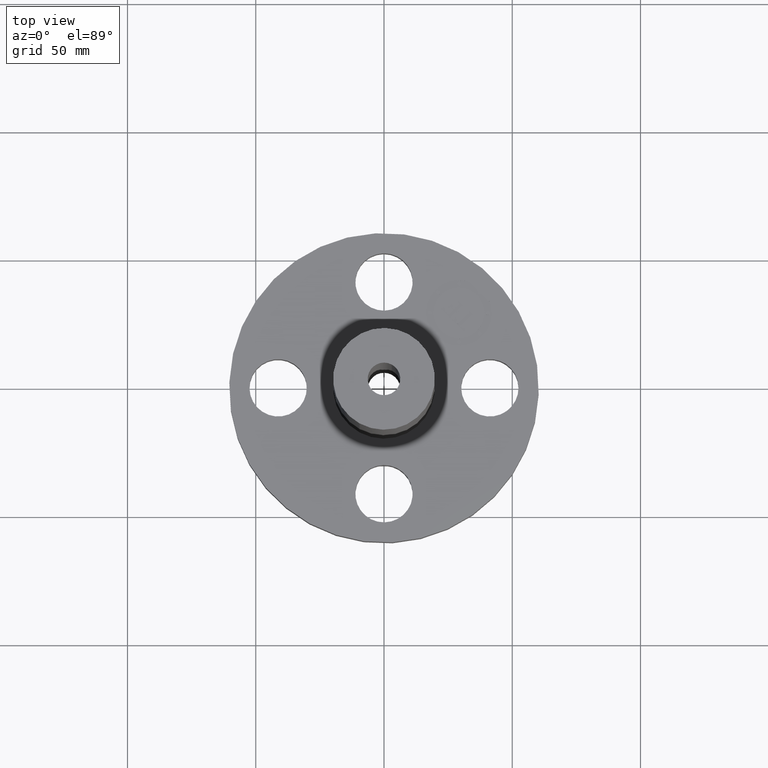
[diagram: clean part render]
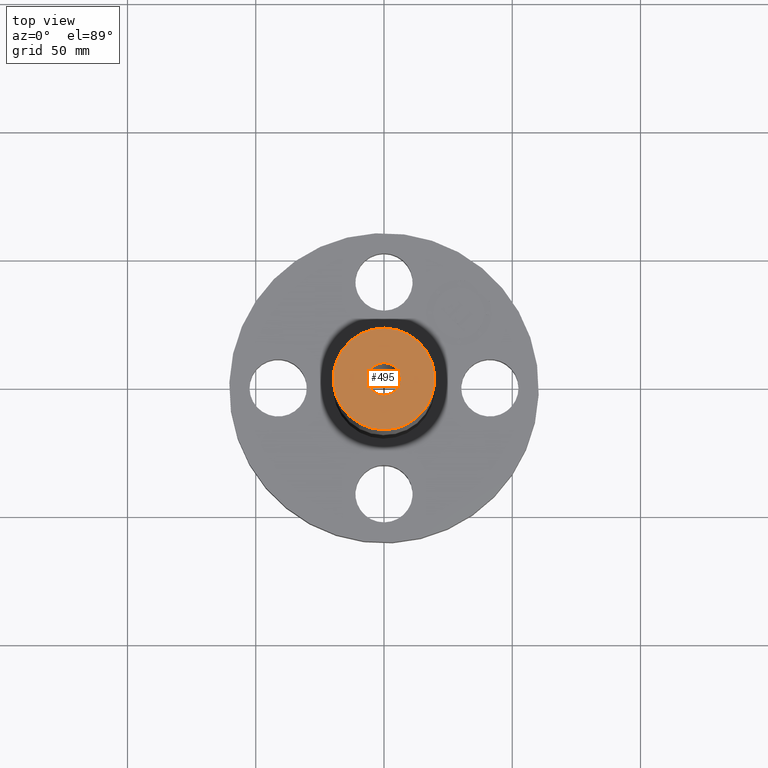
[diagram: same view with one face highlighted and labeled with its STEP entity id]
A machine part, top view. The second image highlights one B-rep face of the part: STEP entity #495.
In plain terms, the highlighted planar face has unit normal (0, 0, -1).
Its self-contained STEP definition (entity closure, byte-faithful):
#434=AXIS2_PLACEMENT_3D('Circle Axis2P3D',#432,#433,$) ;
#458=AXIS2_PLACEMENT_3D('Circle Axis2P3D',#456,#457,$) ;
#471=AXIS2_PLACEMENT_3D('Plane Axis2P3D',#468,#469,#470) ;
#479=AXIS2_PLACEMENT_3D('Circle Axis2P3D',#477,#478,$) ;
#488=AXIS2_PLACEMENT_3D('Circle Axis2P3D',#486,#487,$) ;
#429=CARTESIAN_POINT('Vertex',(0.373951920113,0.684514398277,8.75000000003)) ;
#432=CARTESIAN_POINT('Axis2P3D Location',(0.,0.,8.75000000004)) ;
#436=CARTESIAN_POINT('Vertex',(-0.373951920113,-0.684514398277,8.75000000003)) ;
#456=CARTESIAN_POINT('Axis2P3D Location',(0.,0.,8.75000000004)) ;
#468=CARTESIAN_POINT('Axis2P3D Location',(0.,0.780000000003,8.75000000003)) ;
#477=CARTESIAN_POINT('Axis2P3D Location',(0.,0.,8.75000000003)) ;
#481=CARTESIAN_POINT('Vertex',(-0.119856384652,-0.219395640473,8.75000000004)) ;
#483=CARTESIAN_POINT('Vertex',(0.119856384652,0.219395640473,8.75000000004)) ;
#486=CARTESIAN_POINT('Axis2P3D Location',(0.,0.,8.75000000003)) ;
#433=DIRECTION('Axis2P3D Direction',(0.,0.,-0.0393700787402)) ;
#457=DIRECTION('Axis2P3D Direction',(0.,0.,-0.0393700787402)) ;
#469=DIRECTION('Axis2P3D Direction',(0.,0.,-0.0393700787402)) ;
#470=DIRECTION('Axis2P3D XDirection',(0.0393700787402,0.,0.)) ;
#478=DIRECTION('Axis2P3D Direction',(0.,0.,-0.0393700787402)) ;
#487=DIRECTION('Axis2P3D Direction',(0.,0.,-0.0393700787402)) ;
#474=ORIENTED_EDGE('',*,*,#438,.F.) ;
#475=ORIENTED_EDGE('',*,*,#460,.F.) ;
#492=ORIENTED_EDGE('',*,*,#485,.T.) ;
#493=ORIENTED_EDGE('',*,*,#490,.T.) ;
#494=FACE_BOUND('',#491,.T.) ;
#495=ADVANCED_FACE('PartBody',(#476,#494),#472,.F.) ;
#435=CIRCLE('generated circle',#434,0.780000000003) ;
#459=CIRCLE('generated circle',#458,0.780000000003) ;
#480=CIRCLE('generated circle',#479,0.250000000001) ;
#489=CIRCLE('generated circle',#488,0.250000000001) ;
#438=EDGE_CURVE('',#430,#437,#435,.T.) ;
#460=EDGE_CURVE('',#437,#430,#459,.T.) ;
#485=EDGE_CURVE('',#482,#484,#480,.T.) ;
#490=EDGE_CURVE('',#484,#482,#489,.T.) ;
#473=EDGE_LOOP('',(#474,#475)) ;
#491=EDGE_LOOP('',(#492,#493)) ;
#476=FACE_OUTER_BOUND('',#473,.T.) ;
#472=PLANE('',#471) ;
#430=VERTEX_POINT('',#429) ;
#437=VERTEX_POINT('',#436) ;
#482=VERTEX_POINT('',#481) ;
#484=VERTEX_POINT('',#483) ;